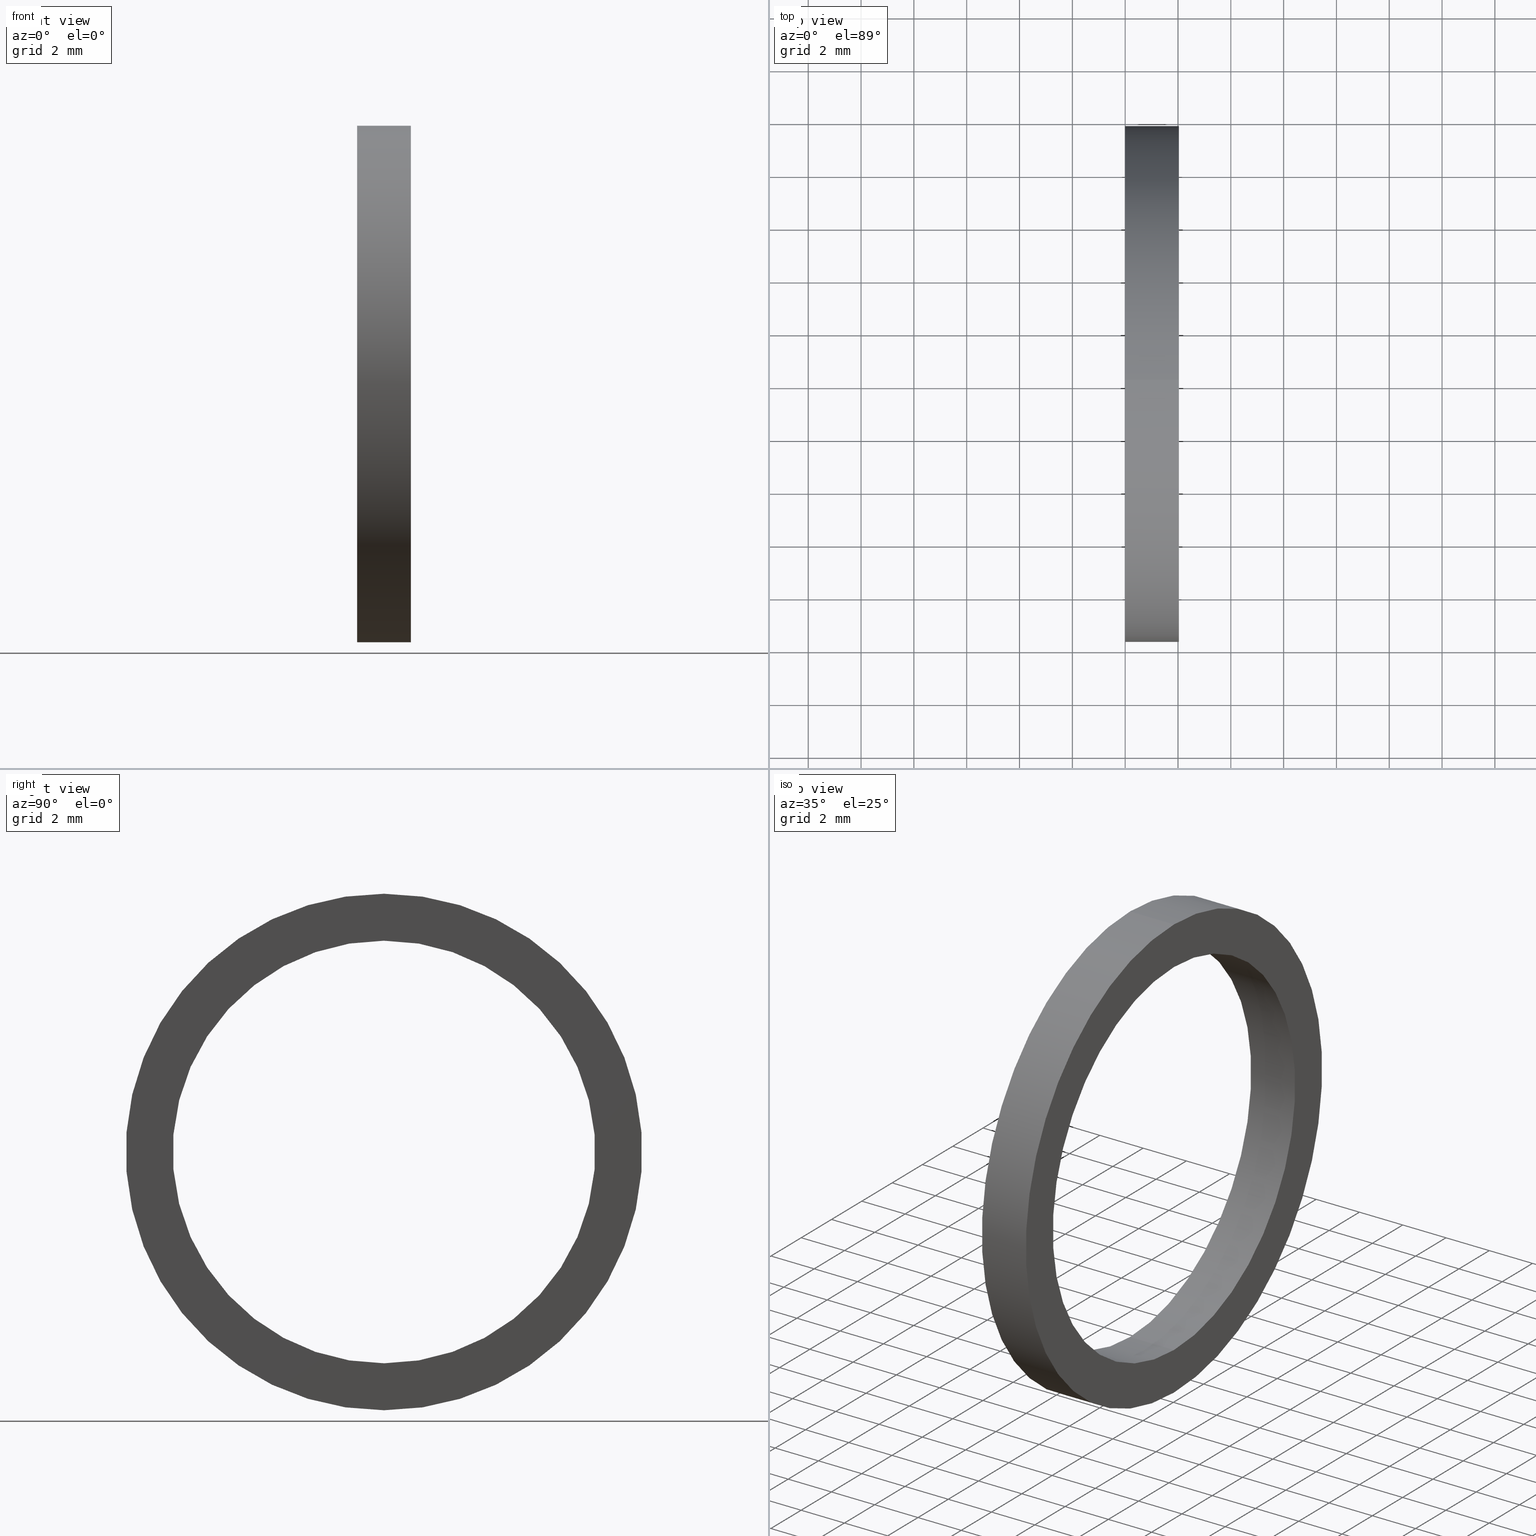
[diagram: canonical four-view strip — front | top / right | iso, engineering-drawing reading convention]
A machine part, canonical four-view strip (front | top / right | iso — engineering-drawing reading convention). The complete STEP part file that produces these views, byte-faithful:
ISO-10303-21;
HEADER;
FILE_DESCRIPTION (( 'STEP AP203' ),
    '1' );
FILE_NAME ('SM-16-VT.STEP',
    '2008-06-25T04:44:05',
    ( 'BSI05' ),
    ( 'BAYSTATE' ),
    'SwSTEP 2.0',
    'SolidWorks 2007',
    '' );
FILE_SCHEMA (( 'CONFIG_CONTROL_DESIGN' ));
ENDSEC;

DATA;
#1 = EDGE_LOOP ( 'NONE', ( #2, #3, #13, #14 ) ) ;
#2 = ORIENTED_EDGE ( 'NONE', *, *, #224, .F. ) ;
#3 = ORIENTED_EDGE ( 'NONE', *, *, #12, .T. ) ;
#4 = EDGE_LOOP ( 'NONE', ( #5, #7 ) ) ;
#5 = ORIENTED_EDGE ( 'NONE', *, *, #6, .T. ) ;
#6 = EDGE_CURVE ( 'NONE', #238, #237, #31, .T. ) ;
#7 = ORIENTED_EDGE ( 'NONE', *, *, #236, .T. ) ;
#8 = EDGE_LOOP ( 'NONE', ( #9, #10 ) ) ;
#9 = ORIENTED_EDGE ( 'NONE', *, *, #15, .F. ) ;
#10 = ORIENTED_EDGE ( 'NONE', *, *, #12, .F. ) ;
#11 = ADVANCED_FACE ( 'NONE', ( #45 ), #44, .F. ) ;
#12 = EDGE_CURVE ( 'NONE', #222, #249, #42, .T. ) ;
#13 = ORIENTED_EDGE ( 'NONE', *, *, #230, .T. ) ;
#14 = ORIENTED_EDGE ( 'NONE', *, *, #26, .F. ) ;
#15 = EDGE_CURVE ( 'NONE', #249, #222, #57, .T. ) ;
#16 = ORIENTED_EDGE ( 'NONE', *, *, #17, .F. ) ;
#17 = EDGE_CURVE ( 'NONE', #244, #241, #73, .T. ) ;
#18 = ORIENTED_EDGE ( 'NONE', *, *, #243, .F. ) ;
#19 = ADVANCED_FACE ( 'NONE', ( #62 ), #81, .T. ) ;
#20 = ORIENTED_EDGE ( 'NONE', *, *, #15, .T. ) ;
#21 = EDGE_LOOP ( 'NONE', ( #22, #23, #24, #34 ) ) ;
#22 = ORIENTED_EDGE ( 'NONE', *, *, #240, .F. ) ;
#23 = ORIENTED_EDGE ( 'NONE', *, *, #6, .F. ) ;
#24 = ORIENTED_EDGE ( 'NONE', *, *, #246, .T. ) ;
#25 = ORIENTED_EDGE ( 'NONE', *, *, #26, .T. ) ;
#26 = EDGE_CURVE ( 'NONE', #225, #228, #76, .T. ) ;
#27 = DIRECTION ( 'NONE',  ( 0.0000000000000000000, 0.0000000000000000000, 1.000000000000000000 ) ) ;
#28 = DIRECTION ( 'NONE',  ( -1.000000000000000000, 0.0000000000000000000, 0.0000000000000000000 ) ) ;
#29 = CARTESIAN_POINT ( 'NONE',  ( 0.07999999999999996000, 0.0000000000000000000, 0.0000000000000000000 ) ) ;
#30 = AXIS2_PLACEMENT_3D ( 'NONE', #29, #28, #27 ) ;
#31 = CIRCLE ( 'NONE', #30, 0.3150000000000000600 ) ;
#32 = DIRECTION ( 'NONE',  ( 1.000000000000000000, 0.0000000000000000000, 0.0000000000000000000 ) ) ;
#33 =( CONVERSION_BASED_UNIT ( 'INCH', #130 ) LENGTH_UNIT ( ) NAMED_UNIT ( #131 ) );
#34 = ORIENTED_EDGE ( 'NONE', *, *, #17, .T. ) ;
#35 = CLOSED_SHELL ( 'NONE', ( #252, #247, #231, #19, #36, #11 ) ) ;
#36 = ADVANCED_FACE ( 'NONE', ( #77, #67 ), #66, .T. ) ;
#37 = CARTESIAN_POINT ( 'NONE',  ( -1.721125226614714300, 0.0000000000000000000, 0.0000000000000000000 ) ) ;
#38 = DIRECTION ( 'NONE',  ( 0.0000000000000000000, 0.0000000000000000000, 1.000000000000000000 ) ) ;
#39 = DIRECTION ( 'NONE',  ( 0.0000000000000000000, 0.0000000000000000000, 1.000000000000000000 ) ) ;
#40 = DIRECTION ( 'NONE',  ( -1.000000000000000000, 0.0000000000000000000, 0.0000000000000000000 ) ) ;
#41 = AXIS2_PLACEMENT_3D ( 'NONE', #37, #40, #43 ) ;
#42 = CIRCLE ( 'NONE', #48, 0.3850000000000000100 ) ;
#43 = DIRECTION ( 'NONE',  ( 0.0000000000000000000, 0.0000000000000000000, 1.000000000000000000 ) ) ;
#44 = CYLINDRICAL_SURFACE ( 'NONE', #41, 0.3150000000000000600 ) ;
#45 = FACE_OUTER_BOUND ( 'NONE', #21, .T. ) ;
#46 = DIRECTION ( 'NONE',  ( -1.000000000000000000, 0.0000000000000000000, 0.0000000000000000000 ) ) ;
#47 = CARTESIAN_POINT ( 'NONE',  ( 0.07999999999999996000, 0.0000000000000000000, 0.0000000000000000000 ) ) ;
#48 = AXIS2_PLACEMENT_3D ( 'NONE', #47, #46, #39 ) ;
#49 = DIRECTION ( 'NONE',  ( 0.0000000000000000000, 0.0000000000000000000, -1.000000000000000000 ) ) ;
#50 = PLANE ( 'NONE',  #51 ) ;
#51 = AXIS2_PLACEMENT_3D ( 'NONE', #53, #52, #38 ) ;
#52 = DIRECTION ( 'NONE',  ( -1.000000000000000000, 0.0000000000000000000, 0.0000000000000000000 ) ) ;
#53 = CARTESIAN_POINT ( 'NONE',  ( 1.408297306895734000E-017, -0.3150000000000000000, 0.0000000000000000000 ) ) ;
#54 = DIRECTION ( 'NONE',  ( 0.0000000000000000000, 0.0000000000000000000, 1.000000000000000000 ) ) ;
#55 = DIRECTION ( 'NONE',  ( -1.000000000000000000, 0.0000000000000000000, 0.0000000000000000000 ) ) ;
#56 = AXIS2_PLACEMENT_3D ( 'NONE', #58, #55, #54 ) ;
#57 = CIRCLE ( 'NONE', #56, 0.3850000000000000100 ) ;
#58 = CARTESIAN_POINT ( 'NONE',  ( 0.07999999999999996000, 0.0000000000000000000, 0.0000000000000000000 ) ) ;
#59 = UNCERTAINTY_MEASURE_WITH_UNIT (LENGTH_MEASURE( 1.000000000000000100E-005 ), #33, 'distance_accuracy_value', 'NONE');
#60 =( NAMED_UNIT ( * ) PLANE_ANGLE_UNIT ( ) SI_UNIT ( $, .RADIAN. ) );
#61 =( NAMED_UNIT ( * ) SI_UNIT ( $, .STERADIAN. ) SOLID_ANGLE_UNIT ( ) );
#62 = FACE_OUTER_BOUND ( 'NONE', #1, .T. ) ;
#63 = DIRECTION ( 'NONE',  ( 0.0000000000000000000, 0.0000000000000000000, 1.000000000000000000 ) ) ;
#64 = CARTESIAN_POINT ( 'NONE',  ( 0.08000000000000001600, -0.3150000000000000600, 0.0000000000000000000 ) ) ;
#65 = AXIS2_PLACEMENT_3D ( 'NONE', #64, #32, #49 ) ;
#66 = PLANE ( 'NONE',  #65 ) ;
#67 = FACE_OUTER_BOUND ( 'NONE', #8, .T. ) ;
#68 = DIRECTION ( 'NONE',  ( 0.0000000000000000000, 0.0000000000000000000, 1.000000000000000000 ) ) ;
#69 = DIRECTION ( 'NONE',  ( -1.000000000000000000, 0.0000000000000000000, 0.0000000000000000000 ) ) ;
#70 = CARTESIAN_POINT ( 'NONE',  ( 0.0000000000000000000, 0.0000000000000000000, 0.0000000000000000000 ) ) ;
#71 = AXIS2_PLACEMENT_3D ( 'NONE', #70, #69, #68 ) ;
#72 = CARTESIAN_POINT ( 'NONE',  ( -1.721125226614714300, 0.0000000000000000000, 0.0000000000000000000 ) ) ;
#73 = CIRCLE ( 'NONE', #74, 0.3150000000000000000 ) ;
#74 = AXIS2_PLACEMENT_3D ( 'NONE', #75, #82, #63 ) ;
#75 = CARTESIAN_POINT ( 'NONE',  ( 0.0000000000000000000, 0.0000000000000000000, 0.0000000000000000000 ) ) ;
#76 = CIRCLE ( 'NONE', #71, 0.3850000000000000100 ) ;
#77 = FACE_BOUND ( 'NONE', #4, .T. ) ;
#78 = DIRECTION ( 'NONE',  ( 0.0000000000000000000, 0.0000000000000000000, 1.000000000000000000 ) ) ;
#79 = DIRECTION ( 'NONE',  ( -1.000000000000000000, 0.0000000000000000000, 0.0000000000000000000 ) ) ;
#80 = AXIS2_PLACEMENT_3D ( 'NONE', #72, #79, #78 ) ;
#81 = CYLINDRICAL_SURFACE ( 'NONE', #80, 0.3850000000000000100 ) ;
#82 = DIRECTION ( 'NONE',  ( -1.000000000000000000, 0.0000000000000000000, 0.0000000000000000000 ) ) ;
#83 = DIRECTION ( 'NONE',  ( -1.000000000000000000, 0.0000000000000000000, 0.0000000000000000000 ) ) ;
#84 = LINE ( 'NONE', #87, #85 ) ;
#85 = VECTOR ( 'NONE', #83, 39.37007874015748100 ) ;
#86 = CARTESIAN_POINT ( 'NONE',  ( 0.0000000000000000000, 4.714890176717309300E-017, -0.3850000000000000100 ) ) ;
#87 = CARTESIAN_POINT ( 'NONE',  ( -1.721125226614714300, 4.714890176717309300E-017, -0.3850000000000000100 ) ) ;
#88 = CARTESIAN_POINT ( 'NONE',  ( 0.07999999999999996000, 4.714890176717309300E-017, -0.3850000000000000100 ) ) ;
#89 =( GEOMETRIC_REPRESENTATION_CONTEXT ( 3 ) GLOBAL_UNCERTAINTY_ASSIGNED_CONTEXT ( ( #59 ) ) GLOBAL_UNIT_ASSIGNED_CONTEXT ( ( #33, #60, #61 ) ) REPRESENTATION_CONTEXT ( 'NONE', 'WORKASPACE' ) );
#90 = FACE_BOUND ( 'NONE', #234, .T. ) ;
#91 = FACE_OUTER_BOUND ( 'NONE', #232, .T. ) ;
#92 = DIRECTION ( 'NONE',  ( -1.000000000000000000, 0.0000000000000000000, 0.0000000000000000000 ) ) ;
#93 = VECTOR ( 'NONE', #92, 39.37007874015748100 ) ;
#94 = CARTESIAN_POINT ( 'NONE',  ( -1.721125226614714300, 0.0000000000000000000, 0.3850000000000000100 ) ) ;
#95 = LINE ( 'NONE', #94, #93 ) ;
#96 = CIRCLE ( 'NONE', #101, 0.3850000000000000100 ) ;
#97 = DIRECTION ( 'NONE',  ( 0.0000000000000000000, 0.0000000000000000000, 1.000000000000000000 ) ) ;
#98 = DIRECTION ( 'NONE',  ( -1.000000000000000000, 0.0000000000000000000, 0.0000000000000000000 ) ) ;
#99 = CARTESIAN_POINT ( 'NONE',  ( 0.0000000000000000000, 0.0000000000000000000, 0.0000000000000000000 ) ) ;
#100 = CARTESIAN_POINT ( 'NONE',  ( 0.0000000000000000000, 0.0000000000000000000, 0.3850000000000000100 ) ) ;
#101 = AXIS2_PLACEMENT_3D ( 'NONE', #99, #98, #97 ) ;
#102 = CIRCLE ( 'NONE', #107, 0.3150000000000000600 ) ;
#103 = ADVANCED_BREP_SHAPE_REPRESENTATION ( 'SM-16-VT', ( #251, #143 ), #89 ) ;
#104 = DIRECTION ( 'NONE',  ( 0.0000000000000000000, 0.0000000000000000000, 1.000000000000000000 ) ) ;
#105 = DIRECTION ( 'NONE',  ( -1.000000000000000000, 0.0000000000000000000, 0.0000000000000000000 ) ) ;
#106 = CARTESIAN_POINT ( 'NONE',  ( 0.07999999999999996000, 0.0000000000000000000, 0.0000000000000000000 ) ) ;
#107 = AXIS2_PLACEMENT_3D ( 'NONE', #106, #105, #104 ) ;
#108 = CARTESIAN_POINT ( 'NONE',  ( 0.0000000000000000000, 3.857637417314162700E-017, -0.3150000000000000000 ) ) ;
#109 = DIRECTION ( 'NONE',  ( -1.000000000000000000, 0.0000000000000000000, 0.0000000000000000000 ) ) ;
#110 = VECTOR ( 'NONE', #109, 39.37007874015748100 ) ;
#111 = CARTESIAN_POINT ( 'NONE',  ( -1.721125226614714300, 3.857637417314163300E-017, -0.3150000000000000600 ) ) ;
#112 = CARTESIAN_POINT ( 'NONE',  ( 0.0000000000000000000, 0.0000000000000000000, 0.0000000000000000000 ) ) ;
#113 = LINE ( 'NONE', #111, #110 ) ;
#114 = PRODUCT ( 'SM-16-VT', 'SM-16-VT', '', ( #147 ) ) ;
#115 = DIRECTION ( 'NONE',  ( 0.0000000000000000000, 0.0000000000000000000, 1.000000000000000000 ) ) ;
#116 = DIRECTION ( 'NONE',  ( -1.000000000000000000, 0.0000000000000000000, 0.0000000000000000000 ) ) ;
#117 = AXIS2_PLACEMENT_3D ( 'NONE', #112, #116, #115 ) ;
#118 = CIRCLE ( 'NONE', #117, 0.3150000000000000000 ) ;
#119 = CARTESIAN_POINT ( 'NONE',  ( 0.07999999999999996000, 3.857637417314163300E-017, -0.3150000000000000600 ) ) ;
#120 = CARTESIAN_POINT ( 'NONE',  ( 0.07999999999999996000, 0.0000000000000000000, 0.3150000000000000600 ) ) ;
#121 = AXIS2_PLACEMENT_3D ( 'NONE', #141, #142, #136 ) ;
#122 = CARTESIAN_POINT ( 'NONE',  ( -1.721125226614714300, 0.0000000000000000000, 0.0000000000000000000 ) ) ;
#123 = FACE_OUTER_BOUND ( 'NONE', #250, .T. ) ;
#124 = DIRECTION ( 'NONE',  ( 0.0000000000000000000, 0.0000000000000000000, 1.000000000000000000 ) ) ;
#125 = DIRECTION ( 'NONE',  ( -1.000000000000000000, 0.0000000000000000000, 0.0000000000000000000 ) ) ;
#126 = AXIS2_PLACEMENT_3D ( 'NONE', #122, #125, #124 ) ;
#127 = LINE ( 'NONE', #129, #140 ) ;
#128 = CARTESIAN_POINT ( 'NONE',  ( 0.0000000000000000000, 0.0000000000000000000, 0.3150000000000000000 ) ) ;
#129 = CARTESIAN_POINT ( 'NONE',  ( -1.721125226614714300, 0.0000000000000000000, 0.3150000000000000600 ) ) ;
#130 = LENGTH_MEASURE_WITH_UNIT ( LENGTH_MEASURE( 0.02539999999999999900 ), #132 );
#131 = DIMENSIONAL_EXPONENTS ( 1.000000000000000000, 0.0000000000000000000, 0.0000000000000000000, 0.0000000000000000000, 0.0000000000000000000, 0.0000000000000000000, 0.0000000000000000000 ) ;
#132 =( LENGTH_UNIT ( ) NAMED_UNIT ( * ) SI_UNIT ( $, .METRE. ) );
#133 = PERSON ( 'UNSPECIFIED', 'UNSPECIFIED', 'UNSPECIFIED', ('UNSPECIFIED'), ('UNSPECIFIED'), ('UNSPECIFIED') ) ;
#134 = FACE_OUTER_BOUND ( 'NONE', #248, .T. ) ;
#135 = CARTESIAN_POINT ( 'NONE',  ( 0.07999999999999996000, 0.0000000000000000000, 0.3850000000000000100 ) ) ;
#136 = DIRECTION ( 'NONE',  ( 0.0000000000000000000, 0.0000000000000000000, 1.000000000000000000 ) ) ;
#137 = CYLINDRICAL_SURFACE ( 'NONE', #121, 0.3850000000000000100 ) ;
#138 = DIRECTION ( 'NONE',  ( -1.000000000000000000, 0.0000000000000000000, 0.0000000000000000000 ) ) ;
#139 = CYLINDRICAL_SURFACE ( 'NONE', #126, 0.3150000000000000600 ) ;
#140 = VECTOR ( 'NONE', #138, 39.37007874015748100 ) ;
#141 = CARTESIAN_POINT ( 'NONE',  ( -1.721125226614714300, 0.0000000000000000000, 0.0000000000000000000 ) ) ;
#142 = DIRECTION ( 'NONE',  ( -1.000000000000000000, 0.0000000000000000000, 0.0000000000000000000 ) ) ;
#143 = AXIS2_PLACEMENT_3D ( 'NONE', #144, #146, #145 ) ;
#144 = CARTESIAN_POINT ( 'NONE',  ( 0.0000000000000000000, 0.0000000000000000000, 0.0000000000000000000 ) ) ;
#145 = DIRECTION ( 'NONE',  ( 1.000000000000000000, 0.0000000000000000000, 0.0000000000000000000 ) ) ;
#146 = DIRECTION ( 'NONE',  ( 0.0000000000000000000, 0.0000000000000000000, 1.000000000000000000 ) ) ;
#147 = MECHANICAL_CONTEXT ( 'NONE', #149, 'mechanical' ) ;
#148 = APPLICATION_PROTOCOL_DEFINITION ( 'international standard', 'config_control_design', 1994, #149 ) ;
#149 = APPLICATION_CONTEXT ( 'configuration controlled 3d designs of mechanical parts and assemblies' ) ;
#150 = ORGANIZATION ( 'UNSPECIFIED', 'UNSPECIFIED', '' ) ;
#151 = CC_DESIGN_PERSON_AND_ORGANIZATION_ASSIGNMENT ( #153, #152, ( #114 ) ) ;
#152 = PERSON_AND_ORGANIZATION_ROLE ( 'design_owner' ) ;
#153 = PERSON_AND_ORGANIZATION ( #133, #150 ) ;
#154 = APPROVAL_STATUS ( 'not_yet_approved' ) ;
#155 = PERSON_AND_ORGANIZATION ( #133, #150 ) ;
#156 = PRODUCT_DEFINITION ( 'UNKNOWN', '', #177, #157 ) ;
#157 = DESIGN_CONTEXT ( 'detailed design', #159, 'design' ) ;
#158 = APPLICATION_PROTOCOL_DEFINITION ( 'international standard', 'config_control_design', 1994, #159 ) ;
#159 = APPLICATION_CONTEXT ( 'configuration controlled 3d designs of mechanical parts and assemblies' ) ;
#160 = CC_DESIGN_APPROVAL ( #166, ( #156 ) ) ;
#161 = APPROVAL_DATE_TIME ( #162, #166 ) ;
#162 = DATE_AND_TIME ( #163, #164 ) ;
#163 = CALENDAR_DATE ( 2008, 25, 6 ) ;
#164 = LOCAL_TIME ( 10, 14, 5.000000000000000000, #165 ) ;
#165 = COORDINATED_UNIVERSAL_TIME_OFFSET ( 5, 30, .AHEAD. ) ;
#166 = APPROVAL ( #154, 'UNSPECIFIED' ) ;
#167 = APPROVAL_ROLE ( '' ) ;
#168 = APPROVAL_PERSON_ORGANIZATION ( #155, #166, #167 ) ;
#169 = PERSON_AND_ORGANIZATION_ROLE ( 'creator' ) ;
#170 = PERSON_AND_ORGANIZATION ( #133, #150 ) ;
#171 = COORDINATED_UNIVERSAL_TIME_OFFSET ( 5, 30, .AHEAD. ) ;
#172 = CC_DESIGN_PERSON_AND_ORGANIZATION_ASSIGNMENT ( #170, #169, ( #156 ) ) ;
#173 = DATE_AND_TIME ( #200, #175 ) ;
#174 = DATE_TIME_ROLE ( 'creation_date' ) ;
#175 = LOCAL_TIME ( 10, 14, 5.000000000000000000, #171 ) ;
#176 = PERSON_AND_ORGANIZATION ( #133, #150 ) ;
#177 = PRODUCT_DEFINITION_FORMATION_WITH_SPECIFIED_SOURCE ( 'ANY', '', #114, .NOT_KNOWN. ) ;
#178 = CC_DESIGN_DATE_AND_TIME_ASSIGNMENT ( #173, #174, ( #156 ) ) ;
#179 = SECURITY_CLASSIFICATION ( '', '', #180 ) ;
#180 = SECURITY_CLASSIFICATION_LEVEL ( 'unclassified' ) ;
#181 = CC_DESIGN_PERSON_AND_ORGANIZATION_ASSIGNMENT ( #183, #182, ( #177 ) ) ;
#182 = PERSON_AND_ORGANIZATION_ROLE ( 'design_supplier' ) ;
#183 = PERSON_AND_ORGANIZATION ( #133, #150 ) ;
#184 = COORDINATED_UNIVERSAL_TIME_OFFSET ( 5, 30, .AHEAD. ) ;
#185 = CC_DESIGN_PERSON_AND_ORGANIZATION_ASSIGNMENT ( #187, #186, ( #179 ) ) ;
#186 = PERSON_AND_ORGANIZATION_ROLE ( 'classification_officer' ) ;
#187 = PERSON_AND_ORGANIZATION ( #133, #150 ) ;
#188 = APPROVAL_STATUS ( 'not_yet_approved' ) ;
#189 = PERSON_AND_ORGANIZATION ( #133, #150 ) ;
#190 = CC_DESIGN_DATE_AND_TIME_ASSIGNMENT ( #192, #191, ( #179 ) ) ;
#191 = DATE_TIME_ROLE ( 'classification_date' ) ;
#192 = DATE_AND_TIME ( #193, #194 ) ;
#193 = CALENDAR_DATE ( 2008, 25, 6 ) ;
#194 = LOCAL_TIME ( 10, 14, 5.000000000000000000, #184 ) ;
#195 = CC_DESIGN_PERSON_AND_ORGANIZATION_ASSIGNMENT ( #197, #196, ( #177 ) ) ;
#196 = PERSON_AND_ORGANIZATION_ROLE ( 'creator' ) ;
#197 = PERSON_AND_ORGANIZATION ( #133, #150 ) ;
#198 = CC_DESIGN_APPROVAL ( #207, ( #177 ) ) ;
#199 = APPROVAL_DATE_TIME ( #201, #207 ) ;
#200 = CALENDAR_DATE ( 2008, 25, 6 ) ;
#201 = DATE_AND_TIME ( #202, #203 ) ;
#202 = CALENDAR_DATE ( 2008, 25, 6 ) ;
#203 = LOCAL_TIME ( 10, 14, 5.000000000000000000, #204 ) ;
#204 = COORDINATED_UNIVERSAL_TIME_OFFSET ( 5, 30, .AHEAD. ) ;
#205 = APPROVAL_PERSON_ORGANIZATION ( #176, #207, #206 ) ;
#206 = APPROVAL_ROLE ( '' ) ;
#207 = APPROVAL ( #208, 'UNSPECIFIED' ) ;
#208 = APPROVAL_STATUS ( 'not_yet_approved' ) ;
#209 = PRODUCT_DEFINITION_SHAPE ( 'NONE', 'NONE',  #156 ) ;
#210 = SHAPE_DEFINITION_REPRESENTATION ( #209, #103 ) ;
#211 = COORDINATED_UNIVERSAL_TIME_OFFSET ( 5, 30, .AHEAD. ) ;
#212 = CALENDAR_DATE ( 2008, 25, 6 ) ;
#213 = CC_DESIGN_APPROVAL ( #216, ( #179 ) ) ;
#214 = LOCAL_TIME ( 10, 14, 5.000000000000000000, #211 ) ;
#215 = APPROVAL_DATE_TIME ( #217, #216 ) ;
#216 = APPROVAL ( #188, 'UNSPECIFIED' ) ;
#217 = DATE_AND_TIME ( #212, #214 ) ;
#218 = APPROVAL_ROLE ( '' ) ;
#219 = APPROVAL_PERSON_ORGANIZATION ( #189, #216, #218 ) ;
#220 = CC_DESIGN_SECURITY_CLASSIFICATION ( #179, ( #177 ) ) ;
#221 = PRODUCT_RELATED_PRODUCT_CATEGORY ( 'detail', '', ( #114 ) ) ;
#222 = VERTEX_POINT ( 'NONE', #88 ) ;
#223 = ORIENTED_EDGE ( 'NONE', *, *, #224, .T. ) ;
#224 = EDGE_CURVE ( 'NONE', #222, #225, #84, .T. ) ;
#225 = VERTEX_POINT ( 'NONE', #86 ) ;
#226 = ORIENTED_EDGE ( 'NONE', *, *, #227, .F. ) ;
#227 = EDGE_CURVE ( 'NONE', #228, #225, #96, .T. ) ;
#228 = VERTEX_POINT ( 'NONE', #100 ) ;
#229 = ORIENTED_EDGE ( 'NONE', *, *, #230, .F. ) ;
#230 = EDGE_CURVE ( 'NONE', #249, #228, #95, .T. ) ;
#231 = ADVANCED_FACE ( 'NONE', ( #91, #90 ), #50, .T. ) ;
#232 = EDGE_LOOP ( 'NONE', ( #233, #25 ) ) ;
#233 = ORIENTED_EDGE ( 'NONE', *, *, #227, .T. ) ;
#234 = EDGE_LOOP ( 'NONE', ( #16, #18 ) ) ;
#235 = ORIENTED_EDGE ( 'NONE', *, *, #236, .F. ) ;
#236 = EDGE_CURVE ( 'NONE', #237, #238, #102, .T. ) ;
#237 = VERTEX_POINT ( 'NONE', #119 ) ;
#238 = VERTEX_POINT ( 'NONE', #120 ) ;
#239 = ORIENTED_EDGE ( 'NONE', *, *, #240, .T. ) ;
#240 = EDGE_CURVE ( 'NONE', #237, #241, #113, .T. ) ;
#241 = VERTEX_POINT ( 'NONE', #108 ) ;
#242 = ORIENTED_EDGE ( 'NONE', *, *, #243, .T. ) ;
#243 = EDGE_CURVE ( 'NONE', #241, #244, #118, .T. ) ;
#244 = VERTEX_POINT ( 'NONE', #128 ) ;
#245 = ORIENTED_EDGE ( 'NONE', *, *, #246, .F. ) ;
#246 = EDGE_CURVE ( 'NONE', #238, #244, #127, .T. ) ;
#247 = ADVANCED_FACE ( 'NONE', ( #134 ), #137, .T. ) ;
#248 = EDGE_LOOP ( 'NONE', ( #20, #223, #226, #229 ) ) ;
#249 = VERTEX_POINT ( 'NONE', #135 ) ;
#250 = EDGE_LOOP ( 'NONE', ( #235, #239, #242, #245 ) ) ;
#251 = MANIFOLD_SOLID_BREP ( 'NONE', #35 ) ;
#252 = ADVANCED_FACE ( 'NONE', ( #123 ), #139, .F. ) ;
ENDSEC;
END-ISO-10303-21;
